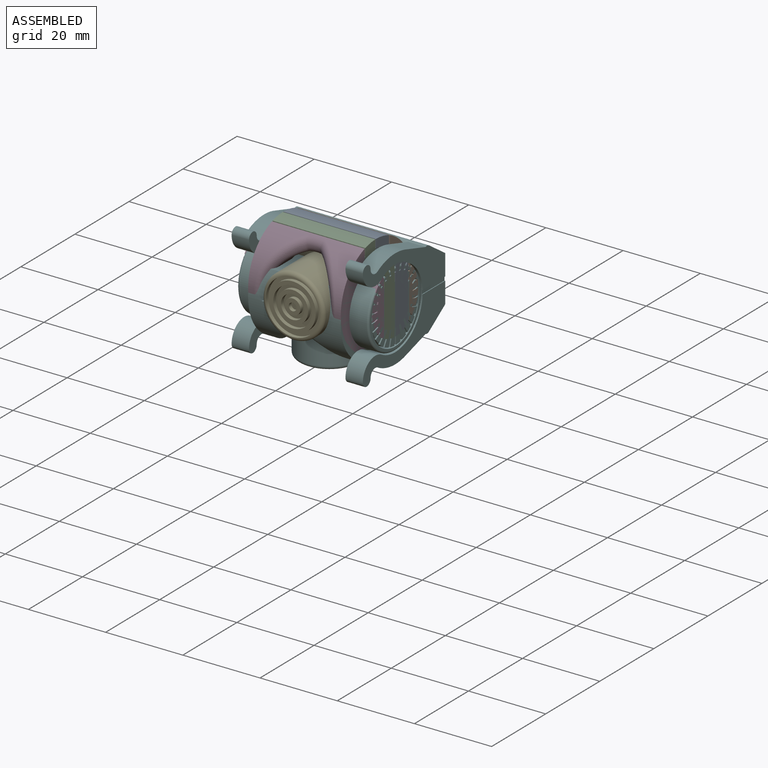
[diagram: assembled view]
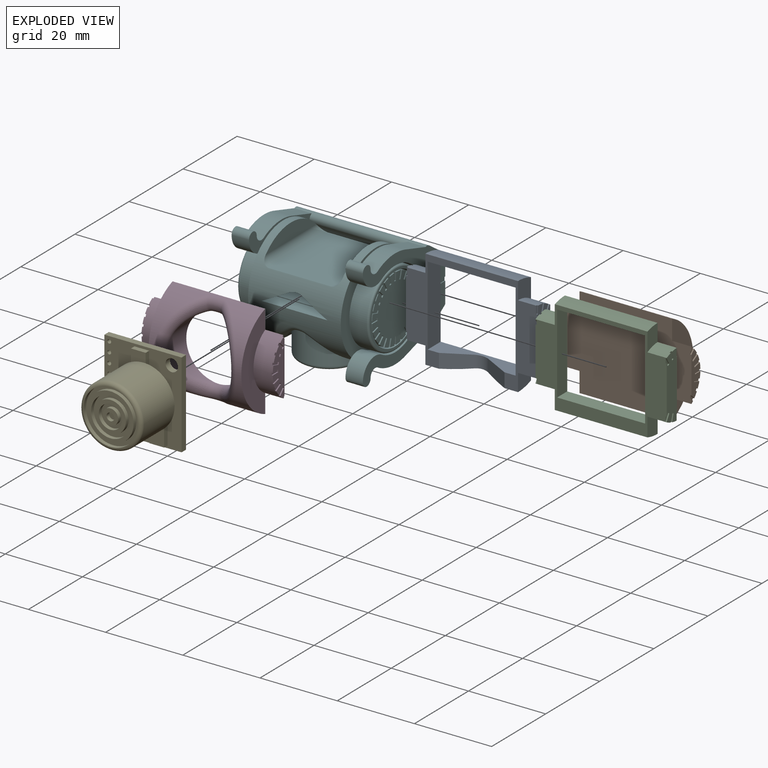
[diagram: exploded view]
GUIDED TOUR — FREECAD ASSEMBLY "capteur_ultrason_maxbotix"

This assembly has 6 components, labeled P0..P5 below (a component is one placed body or linked part; the same part can appear more than once), held together by 0 modeled joints plus 8 derived contact edges. A joint is a constraint between two components; its type names the relative motion it leaves free:
  CONTACT — a derived adjacency edge — the two components touch in the source model (clearance under 2% of the assembly's diagonal); it is measured from the geometry, not a modeled constraint.
Axis/direction vectors are unit vectors and 'through' points are millimeter coordinates, both in the assembly's world frame.

MATES
  1. CONTACT "contact_0_1": P0 <-> P1, contact direction (-1.000, 0.000, 0.000) through (12.00, 5.00, 12.00) mm (derived from contact, not a modeled constraint)
  2. CONTACT "contact_0_2": P0 <-> P2, contact direction (0.000, -1.000, 0.000) through (-11.40, -0.10, -9.30) mm (derived from contact, not a modeled constraint)
  3. CONTACT "contact_0_5": P0 <-> P5, contact direction (-1.000, 0.000, 0.000) through (17.00, 4.67, 7.06) mm (derived from contact, not a modeled constraint)
  4. CONTACT "contact_1_5": P1 <-> P5, contact direction (-1.000, 0.000, 0.000) through (16.99, 7.70, 3.58) mm (derived from contact, not a modeled constraint)
  5. CONTACT "contact_2_3": P2 <-> P3, contact direction (0.000, -1.000, 0.000) through (16.70, -4.05, 7.43) mm (derived from contact, not a modeled constraint)
  6. CONTACT "contact_2_5": P2 <-> P5, contact direction (-1.000, 0.000, 0.000) through (-16.70, -0.30, -8.50) mm (derived from contact, not a modeled constraint)
  7. CONTACT "contact_3_5": P3 <-> P5, contact direction (0.000, 1.000, 0.000) through (16.98, -7.48, 3.97) mm (derived from contact, not a modeled constraint)
  8. CONTACT "contact_4_5": P4 <-> P5, contact direction (0.000, 1.000, 0.000) through (-8.34, -1.65, -5.85) mm (derived from contact, not a modeled constraint)

ASSEMBLY ORDER
  1. P5 — the base component [order heuristic]
  2. P0 [order heuristic]
  3. P1 [order heuristic]
  4. P2 [order heuristic]
  5. P3 [order heuristic]
  6. P4 [order heuristic]
Order-tag legend:
  [order heuristic] — this assembly is geometrically interlocked (no collision-free removal order exists), so components are listed in mate-graph order; insertion feasibility is not verified.

Of the 6 components, 5 carry a construction recipe — the FreeCAD feature program (sketches with constraints, then the solid features that consume them) that regenerates the part from scratch, quoted from this document or from the linked companion document it references; the rest are supplied as boundary geometry only. The tour below walks the components in assembly order: each is shown spotlighted twice — in the assembled view, then in the exploded view, where a leader line traces a displaced component back to its assembled socket (components that stay in place when exploded have no leader line; saturated green if recipe-attached, orange if geometry-only; every other component desaturated gray) — followed by its recipe or geometry summary and the mates that hold it.
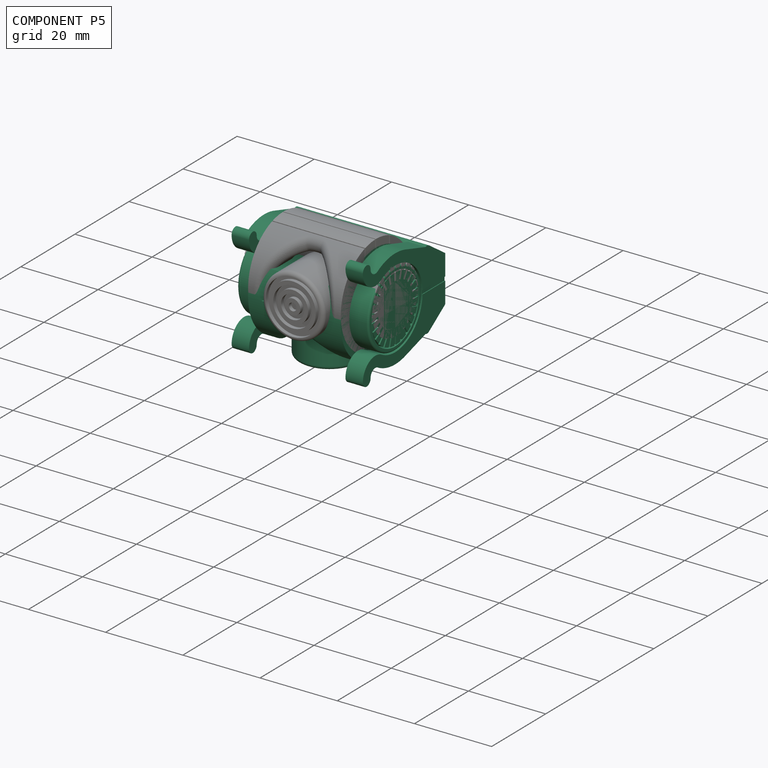
[diagram: component P5 — assembled]
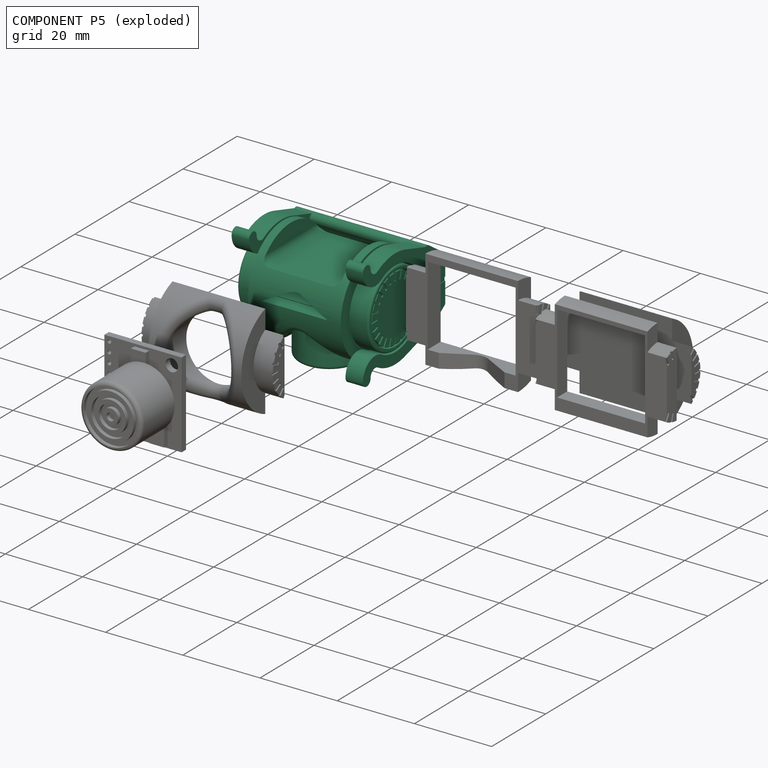
[diagram: component P5 — exploded]
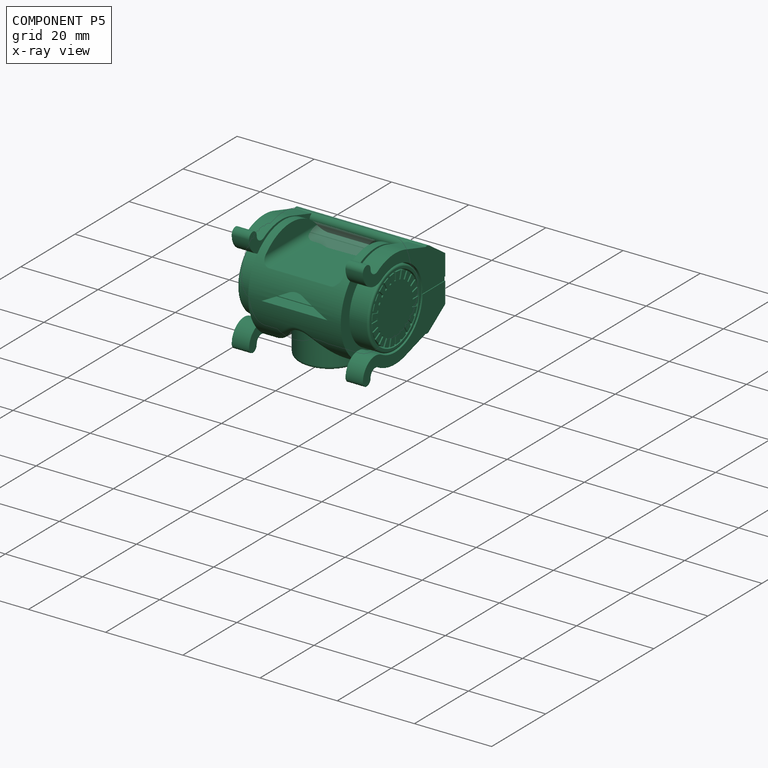
[diagram: component P5 — x-ray view]
COMPONENT P5 — recipe-attached ("support_2_axes_maxbotix", modeled in this document).
Held by: resting contact with P0 (derived edge); resting contact with P1 (derived edge); resting contact with P2 (derived edge); resting contact with P3 (derived edge); resting contact with P4 (derived edge).
Construction recipe (the document's own serialized feature program — sketch geometry with constraints, then the solid features built on it; lengths are millimeters unless a unit is written):

FEATURE [PartDesign::Mirrored] Mirrored003
  MirrorPlane = -> YZ_Plane009
  Placement = pos=(0,0,0) rot=(1,1,1;2.0944rad)
  Suppressed = false
  TransformMode = 0
FEATURE [Sketcher::SketchObject] Sketch012
  ArcFitTolerance = 0
  AttachmentSupport = -> [YZ_Plane009]
  FullyConstrained = true
  MakeInternals = false
  MapMode = 5
  Placement = pos=(0,0,0) rot=(0.57735,0.57735,0.57735;2.0944rad)
  sketch-geometry (5):
    g0: ArcOfCircle CenterX=0 CenterY=0 CenterZ=0 NormalX=0 NormalY=0 NormalZ=1 AngleXU=0 Radius=13.5 StartAngle=4.71239 EndAngle=5.36551
    g1: LineSegment StartX=6 StartY=-18.5 StartZ=0 EndX=10.0836 EndY=-12.5 EndZ=0
    g2: ArcOfCircle CenterX=9 CenterY=-11.7625 CenterZ=0 NormalX=0 NormalY=0 NormalZ=1 AngleXU=0 Radius=1.31071 StartAngle=5.6856 EndAngle=8.5071
    g3: LineSegment StartX=-2.5e-15 StartY=-13.5 StartZ=0 EndX=-2.5e-15 EndY=-18.5 EndZ=0
    g4: LineSegment StartX=-2.5e-15 StartY=-18.5 StartZ=0 EndX=6 EndY=-18.5 EndZ=0
  constraints (14):
    c: Coincident(g0,g-1)
    c: Tangent(g2,g1) = -1.5708
    c: Tangent(g2,g0) = 1.5708
    c: Diameter(g0) = 27
    c: DistanceY(g1,g1) = 6
    c: Coincident(g3,g0)
    c: PointOnObject(g3,g-2)
    c: Vertical(g3)
    c: Coincident(g4,g3)
    c: Coincident(g4,g1)
    c: DistanceY(g3,g3) = 5
    c: DistanceX(g4,g4) = 6
    c: Horizontal(g4)
    c: DistanceX(g3,g2) = 9
FEATURE [PartDesign::Mirrored] Mirrored002
  MirrorPlane = -> Sketch012 [V_Axis]
  Placement = pos=(0,0,0) rot=(1,1,1;2.0944rad)
  Suppressed = false
  TransformMode = 0
FEATURE [PartDesign::Pad] Pad005
  Direction = (1,0,0)
  Length = 17
  Length2 = 10
  Placement = pos=(0,0,0) rot=(1,1,1;2.0944rad)
  Profile = -> Sketch012
  ReferenceAxis = -> Sketch012 [N_Axis]
  Suppressed = false
  Type = 0
FEATURE [Sketcher::SketchObject] Sketch013
  ArcFitTolerance = 0
  AttachmentOffset = pos=(0,0,17) rot=(0,0,1;0rad)
  AttachmentSupport = -> [YZ_Plane009]
  FullyConstrained = true
  MakeInternals = false
  MapMode = 5
  Placement = pos=(17,0,0) rot=(0.57735,0.57735,0.57735;2.0944rad)
  sketch-geometry (11):
    g0: ArcOfCircle CenterX=0 CenterY=0 CenterZ=0 NormalX=0 NormalY=0 NormalZ=1 AngleXU=0 Radius=10.15 StartAngle=4.71239 EndAngle=6.80678
    g1: ArcOfCircle CenterX=0 CenterY=0 CenterZ=0 NormalX=0 NormalY=0 NormalZ=1 AngleXU=0 Radius=13 StartAngle=5.98938 EndAngle=6.80678
    g2: ArcOfCircle CenterX=12.7739 CenterY=7.375 CenterZ=0 NormalX=0 NormalY=0 NormalZ=1 AngleXU=0 Radius=4.6 StartAngle=1.5708 EndAngle=3.66519
    g3: ArcOfCircle CenterX=12.7739 CenterY=7.375 CenterZ=0 NormalX=0 NormalY=0 NormalZ=1 AngleXU=0 Radius=1.75 StartAngle=1.5708 EndAngle=3.66519
    g4: ArcOfCircle CenterX=12.7739 CenterY=10.55 CenterZ=0 NormalX=0 NormalY=0 NormalZ=1 AngleXU=0 Radius=1.425 StartAngle=4.71239 EndAngle=7.85398
    g5: LineSegment StartX=-1.9e-15 StartY=-10.15 StartZ=0 EndX=0 EndY=-14.15 EndZ=0
    g6: LineSegment StartX=12.4429 StartY=-3.76473 StartZ=0 EndX=9.8 EndY=-12.5 EndZ=0
    g7: LineSegment [constr] StartX=0 StartY=0 StartZ=0 EndX=11.2583 EndY=6.5 EndZ=0
    g8: LineSegment [constr] StartX=12.7739 StartY=11.975 StartZ=0 EndX=12.7739 EndY=9.125 EndZ=0
    g9: LineSegment [constr] StartX=8.79016 StartY=5.075 StartZ=0 EndX=11.2583 EndY=6.5 EndZ=0
    g10: LineSegment StartX=9.8 StartY=-12.5 StartZ=0 EndX=0 EndY=-14.15 EndZ=0
  constraints (28):
    c: Coincident(g0,g-1)
    c: Coincident(g1,g0)
    c: Tangent(g4,g2) = -1.5708
    c: Tangent(g2,g0) = 1.5708
    c: Tangent(g4,g3) = 1.5708
    c: Tangent(g3,g1) = 1.5708
    c: Diameter(g0) = 20.3
    c: Diameter(g1) = 26
    c: PointOnObject(g0,g-2)
    c: Coincident(g5,g0)
    c: PointOnObject(g5,g-2)
    c: Coincident(g7,g0)
    c: Coincident(g7,g1)
    c: PointOnObject(g0,g7)
    c: Coincident(g8,g2)
    c: Coincident(g8,g3)
    c: Coincident(g9,g0)
    c: Equal(g9,g8)
    c: Coincident(g9,g1)
    c: Angle(g-1,g7) = 0.523599
    c: Vertical(g8)
    c: Diameter(g3) = 3.5
    c: Tangent(g6,g1) = 1.5708
    c: Coincident(g10,g6)
    c: Coincident(g10,g5)
    c: DistanceY(g5,g5) = 4
    c: DistanceX(g6) = 9.8
    c: DistanceY(g6) = -12.5
FEATURE [PartDesign::Pad] Pad006
  BaseFeature = -> Pad005
  Direction = (1,0,0)
  Length = 4.5
  Length2 = 10
  Placement = pos=(0,0,0) rot=(1,1,1;2.0944rad)
  Profile = -> Sketch013
  ReferenceAxis = -> Sketch013 [N_Axis]
  Refine = true
  Reversed = true
  Suppressed = false
  Type = 0
FEATURE [Sketcher::SketchObject] Sketch014
  ArcFitTolerance = 0
  AttachmentSupport = -> [XY_Plane009]
  FullyConstrained = true
  MakeInternals = false
  MapMode = 5
  sketch-geometry (1):
    g0: Circle CenterX=0 CenterY=0 CenterZ=0 NormalX=0 NormalY=0 NormalZ=1 AngleXU=0 Radius=2.75
  constraints (2):
    c: Coincident(g0,g-1)
    c: Diameter(g0) = 5.5
FEATURE [PartDesign::Pocket] Pocket005
  BaseFeature = -> Pad006
  Direction = (0,0,-1)
  Length = 5
  Length2 = 5
  Placement = pos=(0,0,0) rot=(1,1,1;2.0944rad)
  Profile = -> Sketch014
  ReferenceAxis = -> Sketch014 [N_Axis]
  Suppressed = false
  Type = 1
FEATURE [Sketcher::SketchObject] Sketch015
  ArcFitTolerance = 0
  AttachmentSupport = -> [XY_Plane009]
  FullyConstrained = true
  MakeInternals = false
  MapMode = 5
  sketch-geometry (1):
    g0: Circle CenterX=0 CenterY=0 CenterZ=0 NormalX=0 NormalY=0 NormalZ=1 AngleXU=0 Radius=5
  constraints (2):
    c: Coincident(g0,g-1)
    c: Diameter(g0) = 10
FEATURE [PartDesign::Pocket] Pocket006
  BaseFeature = -> Pocket005
  Direction = (0,0,-1)
  Length = 16.5
  Length2 = 5
  Placement = pos=(0,0,0) rot=(1,1,1;2.0944rad)
  Profile = -> Sketch015
  ReferenceAxis = -> Sketch015 [N_Axis]
  Suppressed = false
  Type = 0
FEATURE [PartDesign::MultiTransform] MultiTransform002
  BaseFeature = -> Pocket006
  Originals = -> [Pad005,Pad006,Pocket005,Pocket006]
  Placement = pos=(0,0,0) rot=(1,1,1;2.0944rad)
  Refine = true
  Suppressed = false
  TransformMode = 0
  Transformations = -> [Mirrored002,Mirrored003]
FEATURE [Sketcher::SketchObject] Sketch023
  ArcFitTolerance = 0
  AttachmentOffset = pos=(0,0,17) rot=(0,0,1;0rad)
  AttachmentSupport = -> [YZ_Plane009]
  FullyConstrained = true
  MakeInternals = false
  MapMode = 5
  Placement = pos=(17,0,0) rot=(0.57735,0.57735,0.57735;2.0944rad)
  sketch-geometry (4):
    g0: LineSegment StartX=-0.5 StartY=-20 StartZ=0 EndX=0.5 EndY=-20 EndZ=0
    g1: LineSegment StartX=0.5 StartY=-20 StartZ=0 EndX=0.5 EndY=-10 EndZ=0
    g2: LineSegment StartX=0.5 StartY=-10 StartZ=0 EndX=-0.5 EndY=-10 EndZ=0
    g3: LineSegment StartX=-0.5 StartY=-10 StartZ=0 EndX=-0.5 EndY=-20 EndZ=0
  constraints (11):
    c: Coincident(g0,g1)
    c: Coincident(g1,g2)
    c: Coincident(g2,g3)
    c: Coincident(g3,g0)
    c: Horizontal(g0)
    c: Vertical(g1)
    c: Vertical(g3)
    c: Symmetric(g1,g2,g-2)
    c: DistanceX(g2,g2) = 1
    c: DistanceY(g1,g-1) = 10
    c: DistanceY(g1,g1) = 10
FEATURE [PartDesign::Pocket] Pocket011
  BaseFeature = -> MultiTransform002
  Direction = (-1,0,0)
  Length = 0.2
  Length2 = 5
  Placement = pos=(0,0,0) rot=(1,1,1;2.0944rad)
  Profile = -> Sketch023
  ReferenceAxis = -> Sketch023 [N_Axis]
  Suppressed = false
  Type = 0
FEATURE [PartDesign::Mirrored] Mirrored006
  BaseFeature = -> Pocket011
  MirrorPlane = -> YZ_Plane009
  Originals = -> [Pocket011]
  Placement = pos=(0,0,0) rot=(1,1,1;2.0944rad)
  Suppressed = false
  TransformMode = 0
FEATURE [PartDesign::Body] Body006  label="base"
  AllowCompound = false
  Group = -> [Sketch012,Pad005,Sketch013,Pad006,Sketch014,Pocket005,Sketch015,Pocket006,MultiTransform002,Mirrored002,Mirrored003,Sketch023,Pocket011,Mirrored006]
  Origin = -> Origin009
  Tip = -> Mirrored006
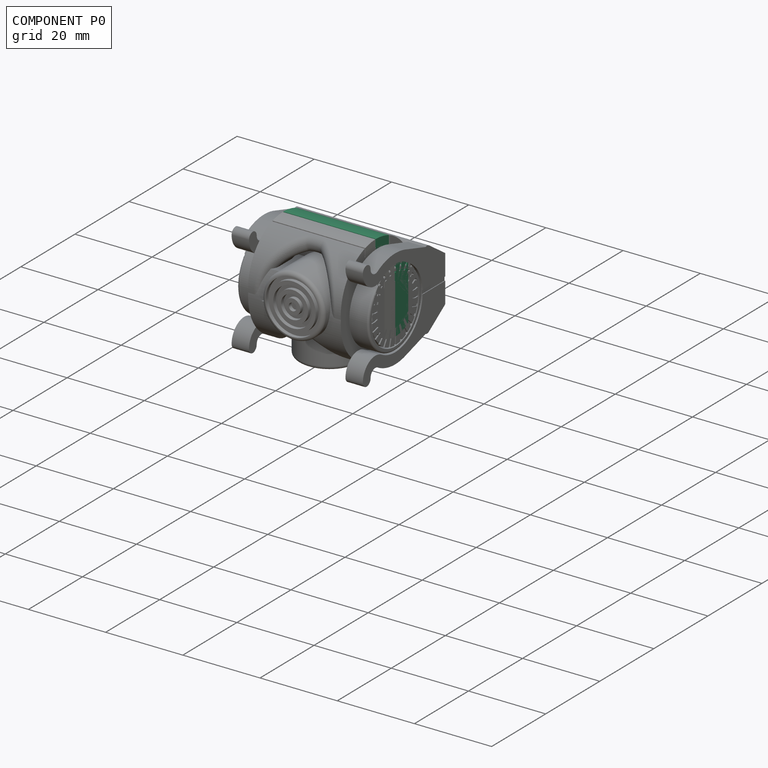
[diagram: component P0 — assembled]
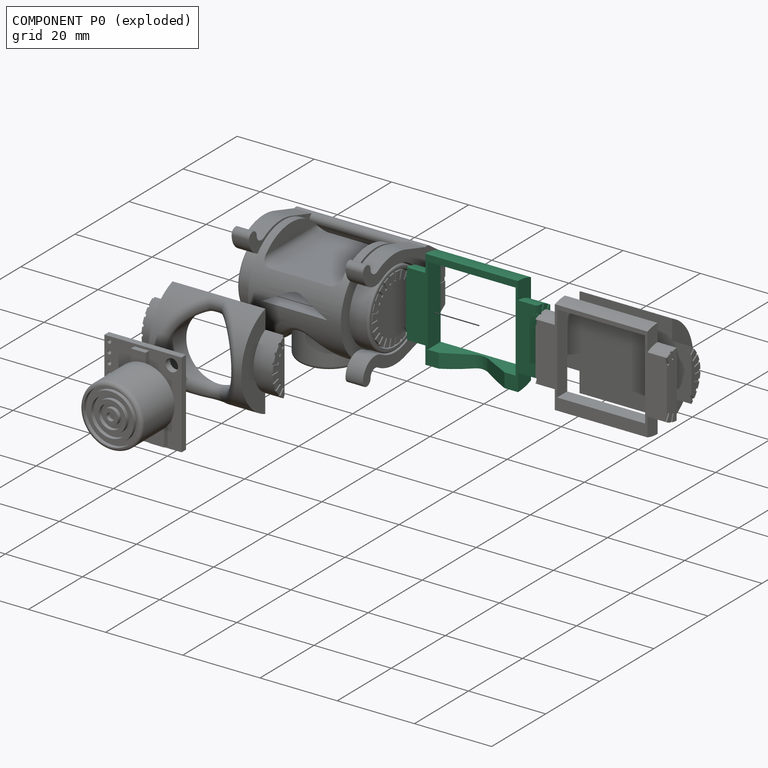
[diagram: component P0 — exploded]
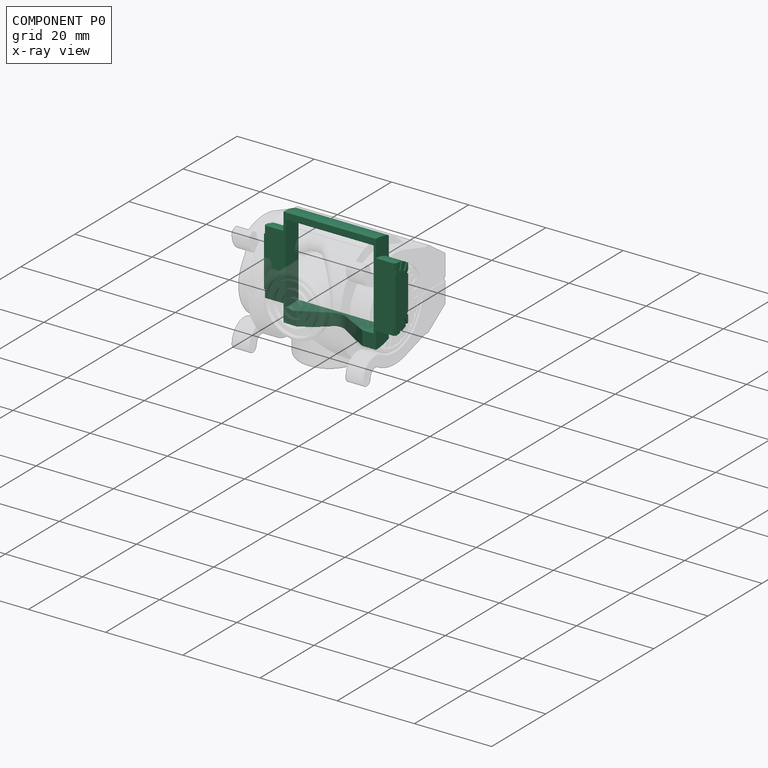
[diagram: component P0 — x-ray view]
COMPONENT P0 — recipe-attached ("ar_1_min", modeled in this document).
Held by: resting contact with P1 (derived edge); resting contact with P2 (derived edge); resting contact with P5 (derived edge).
Construction recipe (the document's own serialized feature program — sketch geometry with constraints, then the solid features built on it; lengths are millimeters unless a unit is written):

FEATURE [PartDesign::FeatureBase] Clone
  BaseFeature = -> Slice001_child0
  Suppressed = false
FEATURE [Sketcher::SketchObject] Sketch027
  ArcFitTolerance = 0
  AttachmentOffset = pos=(0,0,-5) rot=(0,0,1;0rad)
  AttachmentSupport = -> [XZ_Plane014]
  FullyConstrained = false
  MakeInternals = false
  MapMode = 5
  Placement = pos=(0,5,-1.1e-15) rot=(1,0,0;1.5708rad)
  sketch-geometry (4):
    g0: LineSegment StartX=-22.0387 StartY=15.2987 StartZ=0 EndX=21.9729 EndY=15.2987 EndZ=0
    g1: LineSegment StartX=21.9729 StartY=15.2987 StartZ=0 EndX=21.9729 EndY=-15.6308 EndZ=0
    g2: LineSegment StartX=21.9729 StartY=-15.6308 StartZ=0 EndX=-22.0387 EndY=-15.6308 EndZ=0
    g3: LineSegment StartX=-22.0387 StartY=-15.6308 StartZ=0 EndX=-22.0387 EndY=15.2987 EndZ=0
  constraints (8):
    c: Coincident(g0,g1)
    c: Coincident(g1,g2)
    c: Coincident(g2,g3)
    c: Coincident(g3,g0)
    c: Horizontal(g0)
    c: Horizontal(g2)
    c: Vertical(g1)
    c: Vertical(g3)
FEATURE [PartDesign::Pocket] Pocket013
  BaseFeature = -> Clone
  Direction = (0,1,-2e-16)
  Length = 0.2
  Length2 = 5
  Profile = -> Sketch027
  ReferenceAxis = -> Sketch027 [N_Axis]
  Reversed = true
  Suppressed = false
  Type = 0
FEATURE [PartDesign::Body] Body008  label="ar_1_min"
  AllowCompound = false
  Group = -> [Clone,Sketch027,Pocket013]
  Origin = -> Origin014
  Tip = -> Pocket013
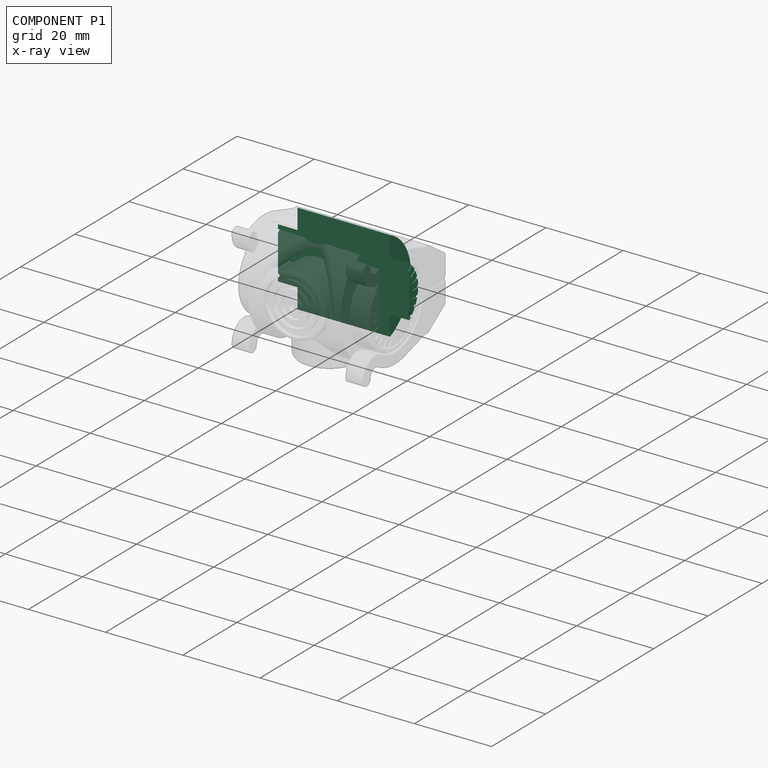
[diagram: component P1 — x-ray view]
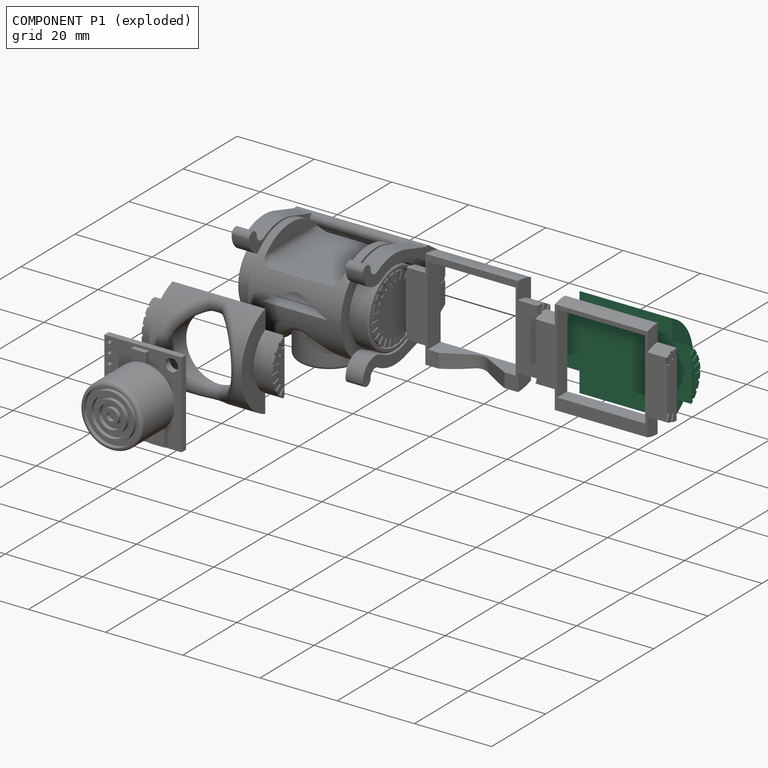
[diagram: component P1 — exploded]
COMPONENT P1 — recipe-attached ("ar_2_min", modeled in this document).
Held by: resting contact with P0 (derived edge); resting contact with P5 (derived edge).
Construction recipe (the document's own serialized feature program — sketch geometry with constraints, then the solid features built on it; lengths are millimeters unless a unit is written):

FEATURE [PartDesign::FeatureBase] Clone001
  BaseFeature = -> Slice001_child1
  Suppressed = false
FEATURE [Sketcher::SketchObject] Sketch028
  ArcFitTolerance = 0
  AttachmentOffset = pos=(0,0,-5) rot=(0,0,1;0rad)
  AttachmentSupport = -> [XZ_Plane015]
  FullyConstrained = false
  MakeInternals = false
  MapMode = 5
  Placement = pos=(0,5,-1.1e-15) rot=(1,0,0;1.5708rad)
  sketch-geometry (4):
    g0: LineSegment StartX=-23.3567 StartY=18.6909 StartZ=0 EndX=23.7795 EndY=18.6909 EndZ=0
    g1: LineSegment StartX=23.7795 StartY=18.6909 StartZ=0 EndX=23.7795 EndY=-14.8637 EndZ=0
    g2: LineSegment StartX=23.7795 StartY=-14.8637 StartZ=0 EndX=-23.3567 EndY=-14.8637 EndZ=0
    g3: LineSegment StartX=-23.3567 StartY=-14.8637 StartZ=0 EndX=-23.3567 EndY=18.6909 EndZ=0
  constraints (8):
    c: Coincident(g0,g1)
    c: Coincident(g1,g2)
    c: Coincident(g2,g3)
    c: Coincident(g3,g0)
    c: Horizontal(g0)
    c: Horizontal(g2)
    c: Vertical(g1)
    c: Vertical(g3)
FEATURE [PartDesign::Pocket] Pocket014
  BaseFeature = -> Clone001
  Direction = (0,1,-2e-16)
  Length = 0.2
  Length2 = 5
  Profile = -> Sketch028
  ReferenceAxis = -> Sketch028 [N_Axis]
  Suppressed = false
  Type = 0
FEATURE [PartDesign::Body] Body009  label="ar_2_min"
  AllowCompound = false
  Group = -> [Clone001,Sketch028,Pocket014]
  Origin = -> Origin015
  Tip = -> Pocket014
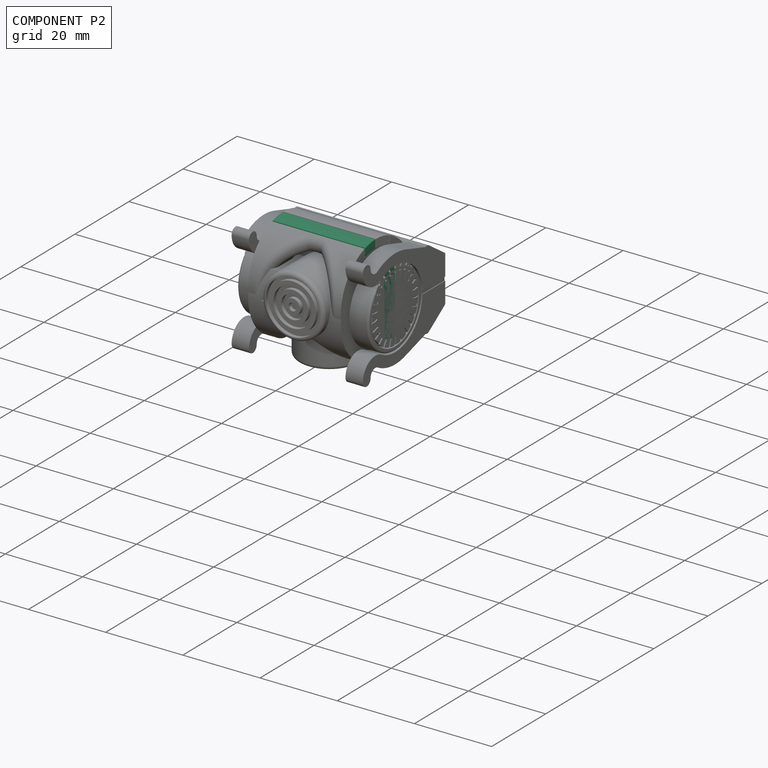
[diagram: component P2 — assembled]
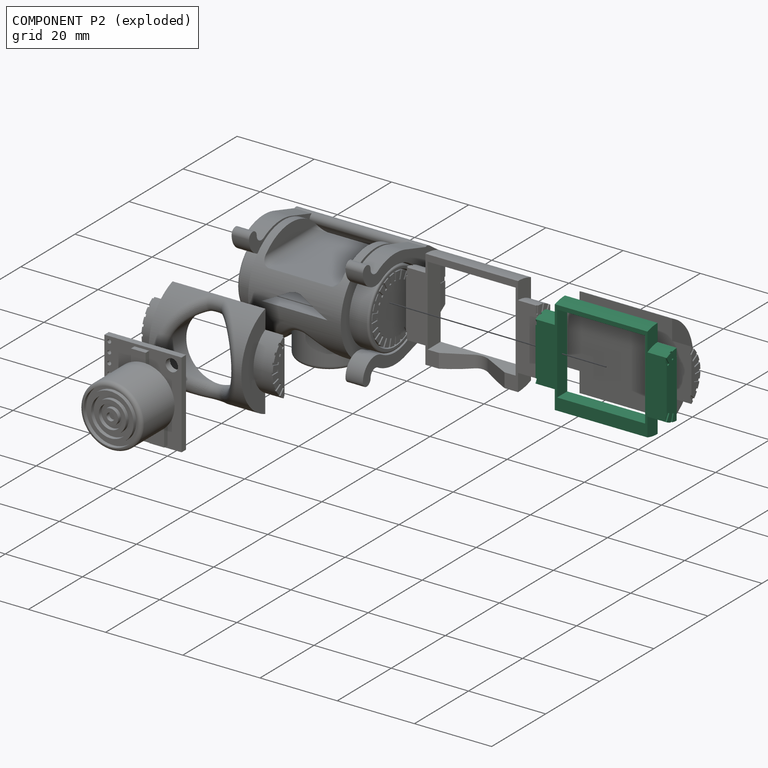
[diagram: component P2 — exploded]
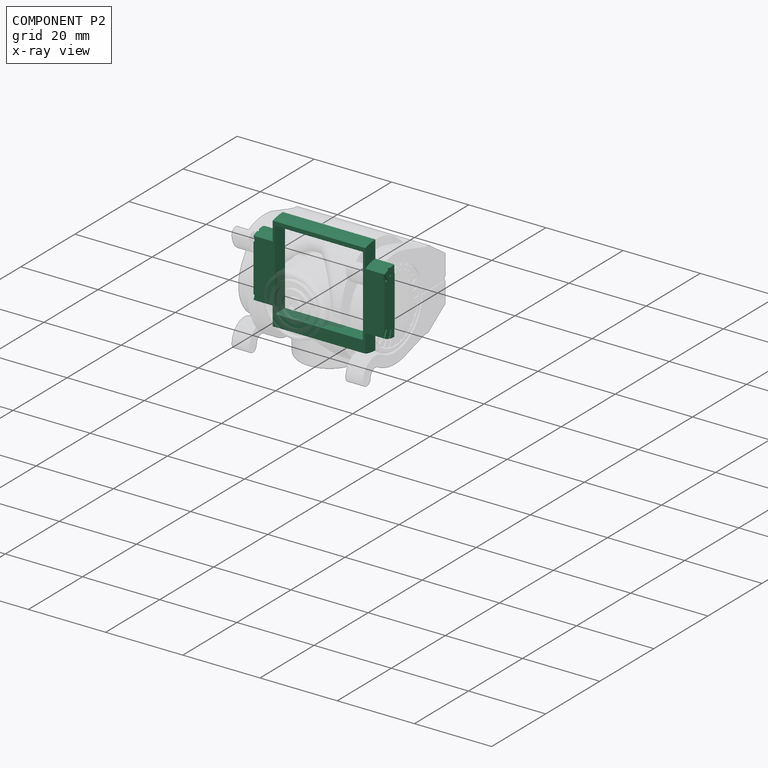
[diagram: component P2 — x-ray view]
COMPONENT P2 — recipe-attached ("av_1_min", modeled in this document).
Held by: resting contact with P0 (derived edge); resting contact with P3 (derived edge); resting contact with P5 (derived edge).
Construction recipe (the document's own serialized feature program — sketch geometry with constraints, then the solid features built on it; lengths are millimeters unless a unit is written):

FEATURE [PartDesign::FeatureBase] Clone002
  BaseFeature = -> Slice_child0
  Suppressed = false
FEATURE [Sketcher::SketchObject] Sketch029
  ArcFitTolerance = 0
  AttachmentSupport = -> [XZ_Plane016]
  FullyConstrained = false
  MakeInternals = false
  MapMode = 5
  Placement = pos=(0,0,0) rot=(1,0,0;1.5708rad)
  sketch-geometry (4):
    g0: LineSegment StartX=-20.7179 StartY=16.2784 StartZ=0 EndX=21.892 EndY=16.2784 EndZ=0
    g1: LineSegment StartX=21.892 StartY=16.2784 StartZ=0 EndX=21.892 EndY=-18.8561 EndZ=0
    g2: LineSegment StartX=21.892 StartY=-18.8561 StartZ=0 EndX=-20.7179 EndY=-18.8561 EndZ=0
    g3: LineSegment StartX=-20.7179 StartY=-18.8561 StartZ=0 EndX=-20.7179 EndY=16.2784 EndZ=0
  constraints (8):
    c: Coincident(g0,g1)
    c: Coincident(g1,g2)
    c: Coincident(g2,g3)
    c: Coincident(g3,g0)
    c: Horizontal(g0)
    c: Horizontal(g2)
    c: Vertical(g1)
    c: Vertical(g3)
FEATURE [PartDesign::Pocket] Pocket015
  BaseFeature = -> Clone002
  Direction = (0,1,-2e-16)
  Length = 0.2
  Length2 = 5
  Profile = -> Sketch029
  ReferenceAxis = -> Sketch029 [N_Axis]
  Reversed = true
  Suppressed = false
  Type = 0
FEATURE [PartDesign::Body] Body010  label="av_1_min"
  AllowCompound = false
  Group = -> [Clone002,Sketch029,Pocket015]
  Origin = -> Origin016
  Tip = -> Pocket015
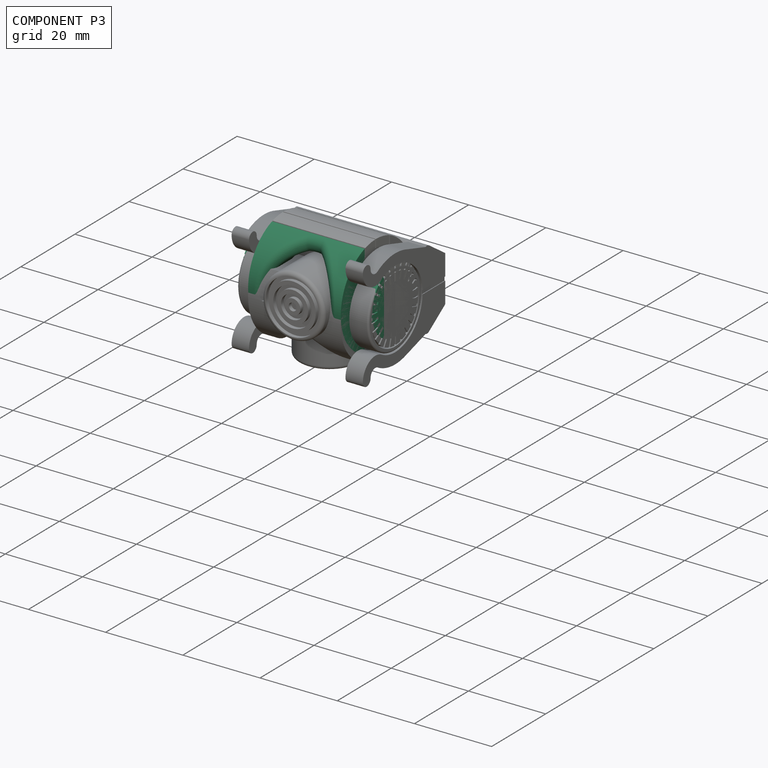
[diagram: component P3 — assembled]
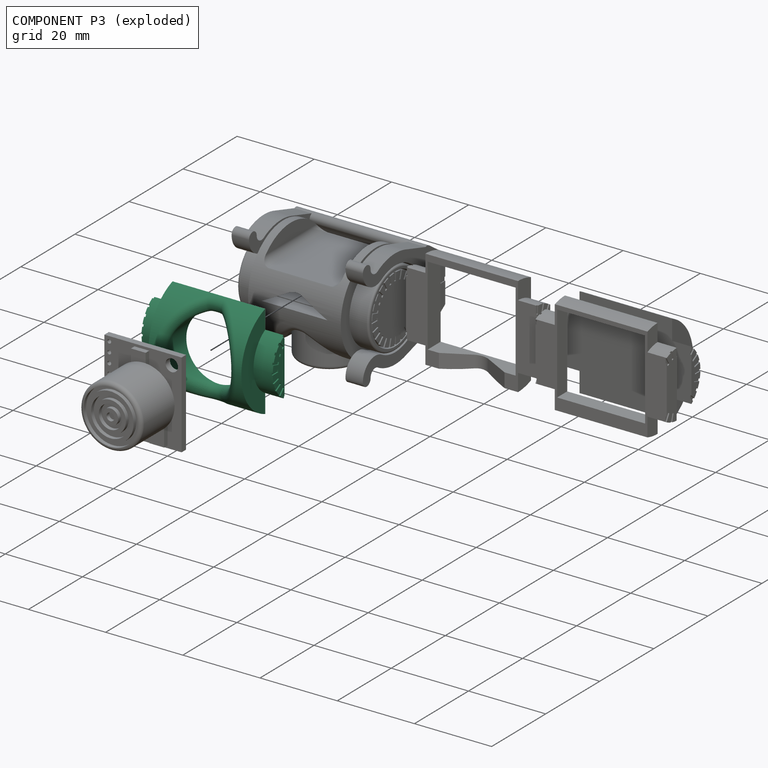
[diagram: component P3 — exploded]
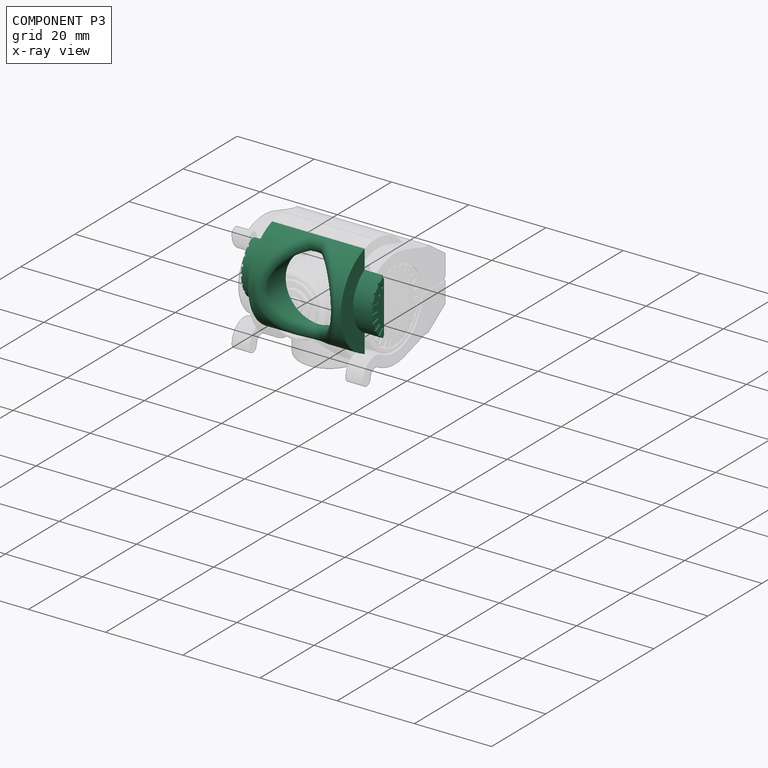
[diagram: component P3 — x-ray view]
COMPONENT P3 — recipe-attached ("av_2_min", modeled in this document).
Held by: resting contact with P2 (derived edge); resting contact with P5 (derived edge).
Construction recipe (the document's own serialized feature program — sketch geometry with constraints, then the solid features built on it; lengths are millimeters unless a unit is written):

FEATURE [PartDesign::FeatureBase] Clone003
  BaseFeature = -> Slice_child1
  Suppressed = false
FEATURE [Sketcher::SketchObject] Sketch030
  ArcFitTolerance = 0
  AttachmentOffset = pos=(0,0,3.95) rot=(0,0,1;0rad)
  AttachmentSupport = -> [XZ_Plane017]
  FullyConstrained = false
  MakeInternals = false
  MapMode = 5
  Placement = pos=(0,-3.95,9e-16) rot=(1,0,0;1.5708rad)
  sketch-geometry (4):
    g0: LineSegment StartX=-21.1746 StartY=15.0844 StartZ=0 EndX=22.9304 EndY=15.0844 EndZ=0
    g1: LineSegment StartX=22.9304 StartY=15.0844 StartZ=0 EndX=22.9304 EndY=-17.2468 EndZ=0
    g2: LineSegment StartX=22.9304 StartY=-17.2468 StartZ=0 EndX=-21.1746 EndY=-17.2468 EndZ=0
    g3: LineSegment StartX=-21.1746 StartY=-17.2468 StartZ=0 EndX=-21.1746 EndY=15.0844 EndZ=0
  constraints (8):
    c: Coincident(g0,g1)
    c: Coincident(g1,g2)
    c: Coincident(g2,g3)
    c: Coincident(g3,g0)
    c: Horizontal(g0)
    c: Horizontal(g2)
    c: Vertical(g1)
    c: Vertical(g3)
FEATURE [PartDesign::Pocket] Pocket016
  BaseFeature = -> Clone003
  Direction = (0,1,-2e-16)
  Length = 0.2
  Length2 = 5
  Profile = -> Sketch030
  ReferenceAxis = -> Sketch030 [N_Axis]
  Reversed = true
  Suppressed = false
  Type = 0
FEATURE [PartDesign::Body] Body011  label="av_2_min"
  AllowCompound = false
  Group = -> [Clone003,Sketch030,Pocket016]
  Origin = -> Origin017
  Tip = -> Pocket016
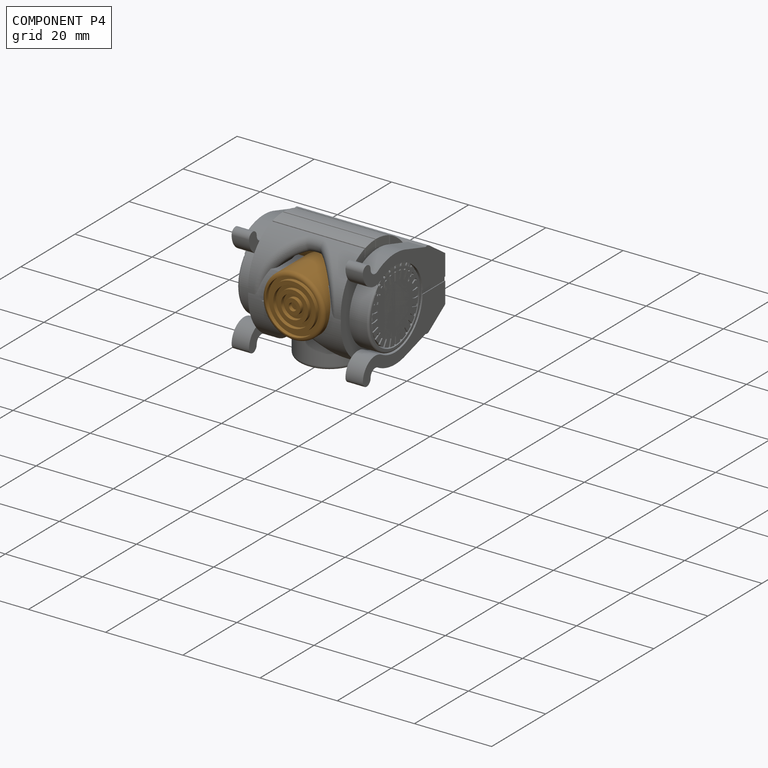
[diagram: component P4 — assembled]
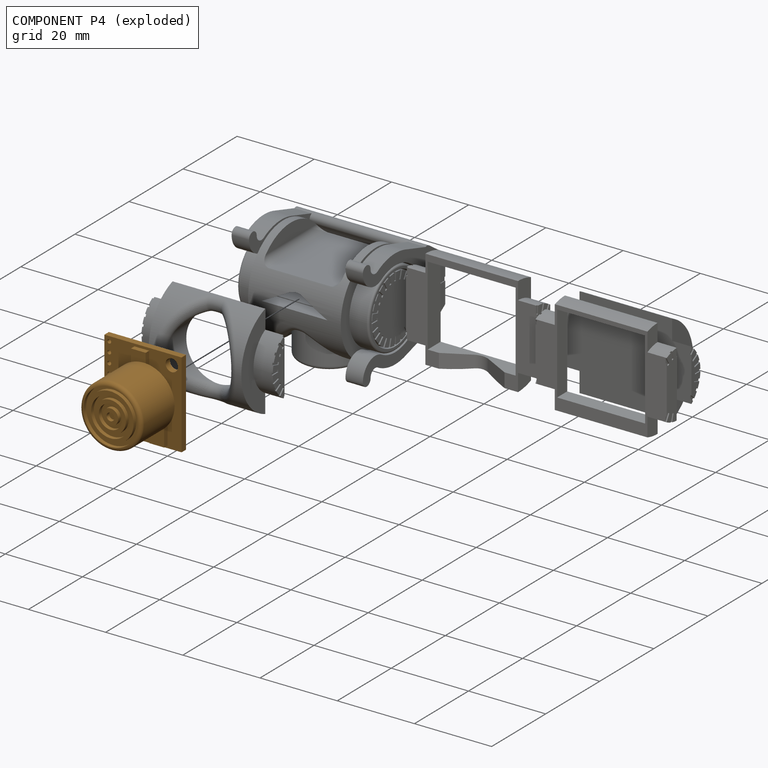
[diagram: component P4 — exploded]
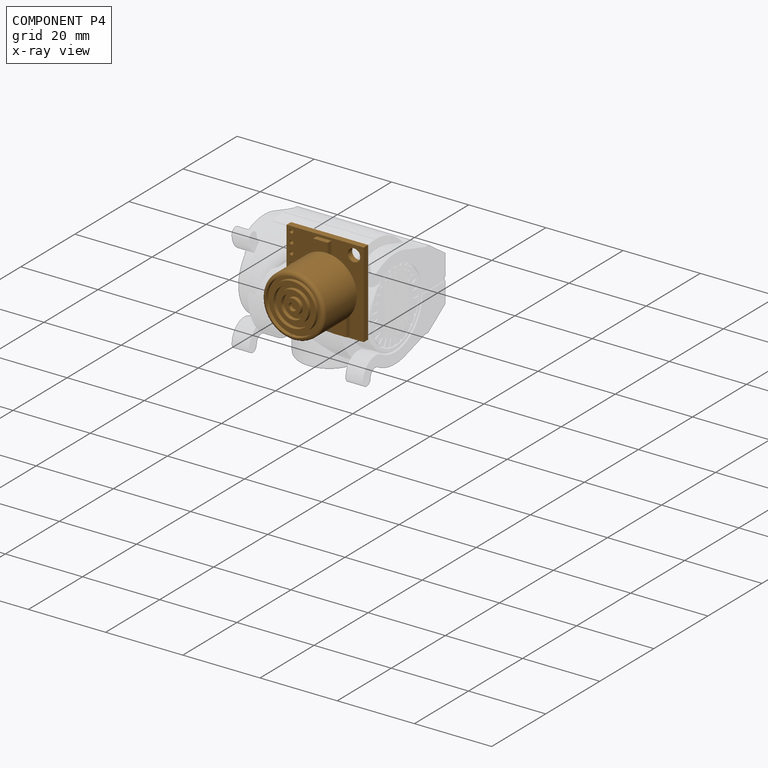
[diagram: component P4 — x-ray view]
COMPONENT P4 — geometry summary ("capteur_us_maxbotix"; no construction recipe available for this part):
  bounding box: 22.2 x 20.0 x 15.2 mm
  tessellated surface: 19,048 triangles
  volume: 3141 mm^3 (46% of its bounding box)
Held by: resting contact with P5 (derived edge).
PROVENANCE & LICENSES
Assembly and component geometry: a FreeCAD (.FCStd) document from a public repository crawl; components, placements and joints were extracted with FreeCAD and each solid tessellated.
Construction recipes: the document's own serialized feature recipes (and, for linked parts, the recipes of companion documents from the same project).
License: as declared in the source repository (recorded in the dataset sidecar).
Joints: native FreeCAD joints and A2plus constraints are mapped to standard mate types; edges marked 'derived from contact' connect touching components and are measured from the geometry, not modeled.
Verification: 5 of this assembly's 6 components carry a construction recipe (5 from this document itself); the rest are geometry-only. Every component's tessellation passed the extraction mesh gates (mesh-volume checksum against the B-rep where available, bounding-box inflation <= 2%).
Renders: orthographic iso camera (az 35 / el 25); the floor grid conveys scale (grid pitch printed in each image; no ruler). In the exploded view each component is displaced by its stored offset vector: the offsets alone carry the explosion direction (mate normal/axis signs are not orientation cues and do not encode it), and separation distances are assigned per mate-chain, not proportionally to assembly-order depth.
